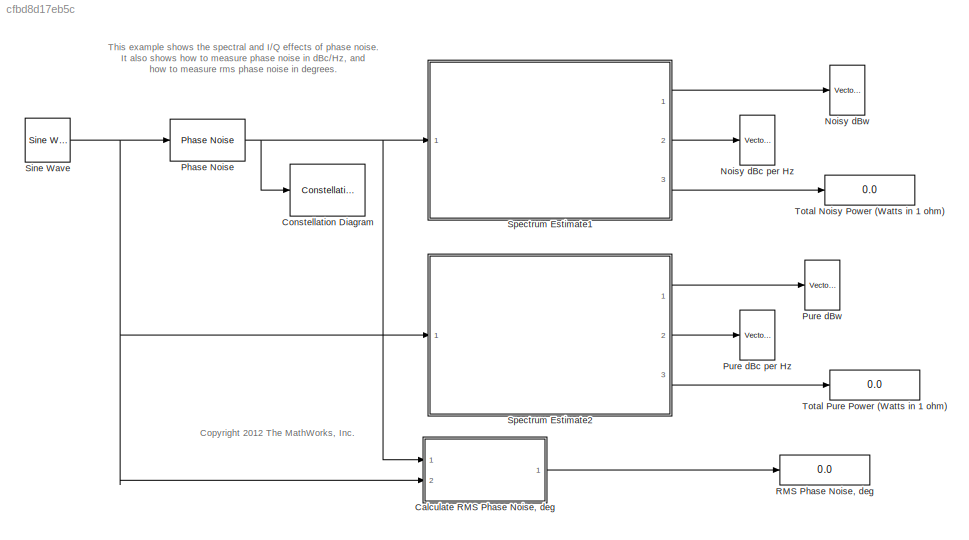
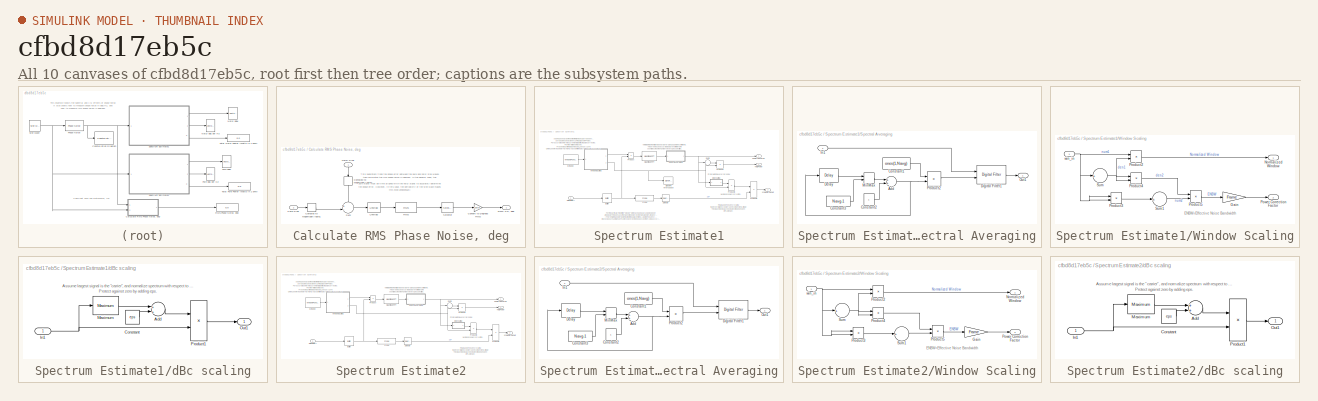
[diagram: thumbnail index - all 10 canvases of the model, root first then tree order]
MODEL slx_cfbd8d17eb5c
KIND model
BLOCK [SubSystem] Calculate RMS Phase Noise, deg
  Ports = [2, 1]
  RequestExecContextInheritance = off
BLOCK [ComplexToMagnitudeAngle] Calculate RMS Phase Noise, deg/Complex to Magnitude-Angle1
  Output = Angle
  Ports = [1, 1]
BLOCK [ComplexToMagnitudeAngle] Calculate RMS Phase Noise, deg/Complex to Magnitude-Angle2
  Output = Angle
  Ports = [1, 1]
BLOCK [Gain] Calculate RMS Phase Noise, deg/Convert to Degrees RMS
  Gain = 180/pi
  OutDataTypeStr = Inherit: Inherit via internal rule
  ParamDataTypeStr = Inherit: Inherit via internal rule
  SaturateOnIntegerOverflow = off
BLOCK [Inport] Calculate RMS Phase Noise, deg/Noisy Sine
  IconDisplay = Port number
BLOCK [Inport] Calculate RMS Phase Noise, deg/Pure Sine
  IconDisplay = Port number
  Port = 2
BLOCK [Reference] Calculate RMS Phase Noise, deg/RMS  REF=dspstat3/RMS
  InputProcessing = Columns as channels (frame based)
  Ports = [1, 1]
  SourceBlock = dspstat3/RMS
  SourceType = RMS
  UserDataPersistent = on
  dimension = 1
  directionMode = Each column
  reset_popup = None
  run = on
  treatSBRowAsCol = on
BLOCK [Outport] Calculate RMS Phase Noise, deg/RMS PN, deg
  IconDisplay = Port number
BLOCK [Selector] Calculate RMS Phase Noise, deg/Selector
  IndexOptions = Index vector (dialog),Index vector (dialog)
  Indices = 1024,1
  InputPortWidth = 3
  NumberOfDimensions = 2
  OutputSizes = 1,1
  Ports = [1, 1]
BLOCK [Sum] Calculate RMS Phase Noise, deg/Sum
  IconShape = round
  InputSameDT = off
  Inputs = +-|
  OutDataTypeStr = Inherit: Inherit via internal rule
  Ports = [2, 1]
  SaturateOnIntegerOverflow = off
BLOCK [Reference] Calculate RMS Phase Noise, deg/Unwrap  REF=dspsigops/Unwrap
  InputProcessing = Columns as channels (frame based)
  Ports = [1, 1]
  SourceBlock = dspsigops/Unwrap
  SourceType = Unwrap
  UserDataPersistent = on
  running = off
  tol = pi
BLOCK [ConstellationDiagram] Constellation Diagram
  Ports = [1]
  Tag = ScatterPlot
BLOCK [Reference] Noisy dBc per Hz  REF=dspsnks4/Vector
Scope
  AxisGrid = on
  AxisLegend = off
  AxisProperties = off
  AxisZoom = off
  DisplayProperties = off
  Domain = Frequency
  FigPos = [422 54 363 235]
  FrameNumber = on
  HorizSpan = 1
  InheritXIncr = on
  LineProperties = off
  Memory = off
  OpenScopeAtSimStart = on
  OpenScopeImmediately = off
  Ports = [1]
  ScopeProperties = on
  ShowPortLabels = off
  SourceBlock = dspsnks4/Vector\nScope
  SourceType = Vector Scope
  XAxisParamsVer = 6.9
  XIncr = 1/8192
  XLabel = Time
  XLimit = Auto
  XMax = 512
  XMin = -512
  XRange = [-Fs/2...Fs/2]
  XStart = 0
  XUnits = Hertz
  YLabel = dBc/Hz
  YMax = 10
  YMin = -150
  YUnits = dB
BLOCK [Reference] Noisy dBw  REF=dspsnks4/Vector
Scope
  AxisGrid = on
  AxisLegend = off
  AxisProperties = off
  AxisZoom = off
  DisplayProperties = off
  Domain = Frequency
  FigPos = [17 53 386 235]
  FrameNumber = on
  HorizSpan = 1
  InheritXIncr = on
  LineProperties = off
  Memory = off
  OpenScopeAtSimStart = on
  OpenScopeImmediately = off
  Ports = [1]
  ScopeProperties = on
  ShowPortLabels = off
  SourceBlock = dspsnks4/Vector\nScope
  SourceType = Vector Scope
  XAxisParamsVer = 6.9
  XIncr = 1
  XLabel = Time
  XLimit = Auto
  XMax = 512
  XMin = -512
  XRange = [-Fs/2...Fs/2]
  XStart = 0
  XUnits = Hertz
  YLabel = dBw
  YMax = 10
  YMin = -100
  YUnits = dB
BLOCK [Reference] Phase Noise  REF=commrflib2/Phase
Noise
  AttributesFormatString = \n
  Fo = [20 200]
  Fs = 8192
  PhNs = [-60 -80]
  Ports = [1, 1]
  SourceBlock = commrflib2/Phase\nNoise
  SourceType = Phase Noise
  seed = 2137
BLOCK [Reference] Pure dBc per Hz  REF=dspsnks4/Vector
Scope
  AxisGrid = on
  AxisLegend = off
  AxisProperties = off
  AxisZoom = off
  DisplayProperties = off
  Domain = Frequency
  FigPos = [418 437 367 238]
  FrameNumber = on
  HorizSpan = 1
  InheritXIncr = on
  LineProperties = off
  Memory = off
  OpenScopeAtSimStart = on
  OpenScopeImmediately = off
  Ports = [1]
  ScopeProperties = on
  ShowPortLabels = off
  SourceBlock = dspsnks4/Vector\nScope
  SourceType = Vector Scope
  XAxisParamsVer = 6.9
  XIncr = 1
  XLabel = Time
  XLimit = Auto
  XMax = 512
  XMin = -512
  XRange = [-Fs/2...Fs/2]
  XStart = 0
  XUnits = Hertz
  YLabel = dBc/Hz
  YMax = 8.0015
  YMin = -402.0216
  YUnits = dB
BLOCK [Reference] Pure dBw  REF=dspsnks4/Vector
Scope
  AxisGrid = on
  AxisLegend = off
  AxisProperties = off
  AxisZoom = off
  DisplayProperties = off
  Domain = Frequency
  FigPos = [14 435 385 241]
  FrameNumber = on
  HorizSpan = 1
  InheritXIncr = on
  LineProperties = off
  Memory = off
  OpenScopeAtSimStart = on
  OpenScopeImmediately = off
  Ports = [1]
  ScopeProperties = on
  ShowPortLabels = off
  SourceBlock = dspsnks4/Vector\nScope
  SourceType = Vector Scope
  XAxisParamsVer = 6.9
  XIncr = 1
  XLabel = Time
  XLimit = Auto
  XMax = 512
  XMin = -512
  XRange = [-Fs/2...Fs/2]
  XStart = 0
  XUnits = Hertz
  YLabel = dBw
  YMax = 9.7625
  YMin = -400.2607
  YUnits = dB
BLOCK [Display] RMS Phase Noise, deg
  Ports = [1]
BLOCK [Reference] Sine Wave  REF=dspsrcs4/Sine Wave
  Amplitude = 1
  CompMethod = Trigonometric fcn
  Frequency = 128
  LastOutDataTypeStr = double
  OutComplex = Complex
  OutDataTypeStr = double
  Phase = pi/8
  Ports = [0, 1]
  ResetState = Restart at time zero
  SampleMode = Discrete
  SampleTime = 1/8192
  SamplesPerFrame = 1024
  SourceBlock = dspsrcs4/Sine Wave
  SourceType = Sine Wave
  TableSize = Speed
  additionalParams = off
  allowOverrides = on
  dataType = double
  fracBitsMode = Best precision
  numFracBits = 15
  udDataType = sfix(16)
  wordLen = 16
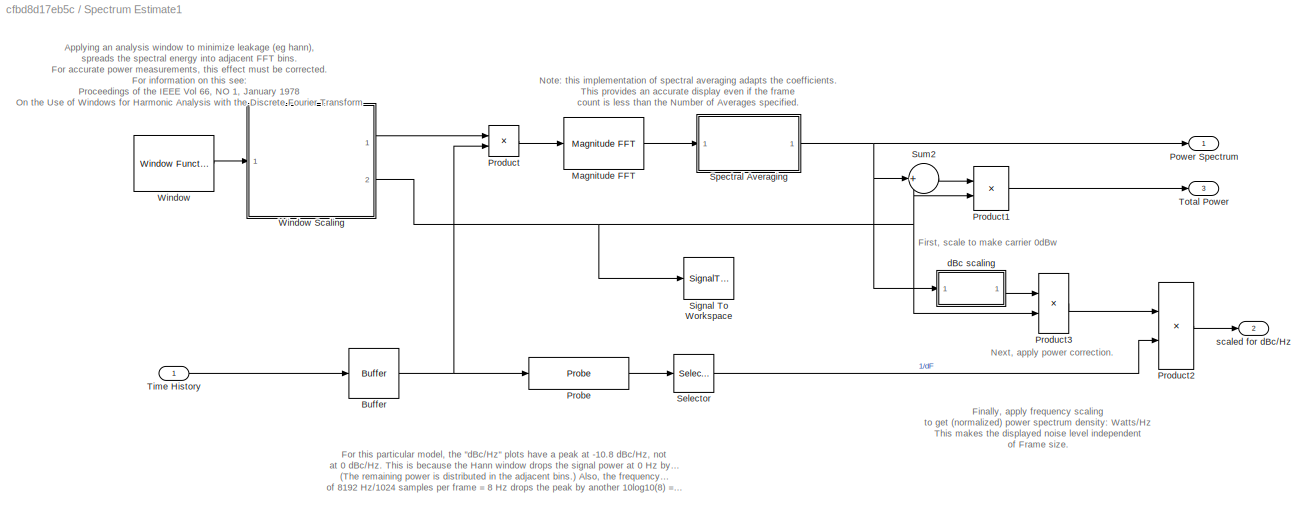
BLOCK [SubSystem] Spectrum Estimate1
  Ports = [1, 3]
  RequestExecContextInheritance = off
BLOCK [Buffer] Spectrum Estimate1/Buffer
  N = Frame
  TreatMby1Signals = One channel
BLOCK [Reference] Spectrum Estimate1/Magnitude FFT  REF=dspspect3/Magnitude
FFT
  FFTImplementation = Auto
  Ports = [1, 1]
  SourceBlock = dspspect3/Magnitude\nFFT
  SourceType = Magnitude FFT
  WrapInput = on
  fftLenInherit = on
  fftsize = fftsize
  mag_or_magsq = Magnitude squared
BLOCK [Outport] Spectrum Estimate1/Power Spectrum
  IconDisplay = Port number
BLOCK [Probe] Spectrum Estimate1/Probe
  Ports = [1, 1]
  ProbeComplexSignal = off
  ProbeSampleTimeDataType = single
  ProbeWidth = off
  ProbeWidthDataType = single
BLOCK [Product] Spectrum Estimate1/Product
  InputSameDT = off
  OutDataTypeStr = Inherit: Inherit via internal rule
  Ports = [2, 1]
  SaturateOnIntegerOverflow = off
BLOCK [Product] Spectrum Estimate1/Product1
  InputSameDT = off
  Inputs = */
  OutDataTypeStr = Inherit: Inherit via internal rule
  Ports = [2, 1]
  SaturateOnIntegerOverflow = off
BLOCK [Product] Spectrum Estimate1/Product2
  InputSameDT = off
  Inputs = **
  OutDataTypeStr = Inherit: Inherit via internal rule
  Ports = [2, 1]
  SaturateOnIntegerOverflow = off
BLOCK [Product] Spectrum Estimate1/Product3
  InputSameDT = off
  Inputs = */
  OutDataTypeStr = Inherit: Inherit via internal rule
  Ports = [2, 1]
  SaturateOnIntegerOverflow = off
BLOCK [Selector] Spectrum Estimate1/Selector
  Indices = [1]
  InputPortWidth = 2
  Ports = [1, 1]
BLOCK [SignalToWorkspace] Spectrum Estimate1/Signal To Workspace
  CopyFcn = dspblkcopystw(gcbh);
  MaxDataPoints = inf
  Ports = [1]
  VariableName = pwr_corr
BLOCK [SubSystem] Spectrum Estimate1/Spectral Averaging
  Ports = [1, 1]
  RequestExecContextInheritance = off
BLOCK [Sum] Spectrum Estimate1/Spectral Averaging/Add
  InputSameDT = off
  OutDataTypeStr = Inherit: Inherit via internal rule
  Ports = [2, 1]
  SaturateOnIntegerOverflow = off
BLOCK [Constant] Spectrum Estimate1/Spectral Averaging/Constant1
  OutDataTypeStr = double
  Value = ones(1,Navg)
BLOCK [Constant] Spectrum Estimate1/Spectral Averaging/Constant2
  OutDataTypeStr = double
BLOCK [Constant] Spectrum Estimate1/Spectral Averaging/Constant3
  OutDataTypeStr = double
  Value = Navg-1
BLOCK [Reference] Spectrum Estimate1/Spectral Averaging/Delay  REF=dspsigops/Delay
  InputProcessing = Inherited (this choice will be removed - see release notes)
  Ports = [1, 1]
  SourceBlock = dspsigops/Delay
  SourceType = Delay
  UserDataPersistent = on
  delay = 1
  dif_ic_for_ch = off
  dif_ic_for_dly = off
  dly_unit = Samples
  ic = 0
  ic_detail = off
  reset_popup = None
BLOCK [Reference] Spectrum Estimate1/Spectral Averaging/Digital Filter1  REF=dsparch4/Digital Filter
  AllPoleFiltStruct = Direct form
  BiQuadCoeffs = [1 0.3 0.4 1 0.1 0.2]
  CoeffSource = Input port(s)
  DenCoeffs = [1 0.1]
  FIRFiltStruct = Direct form
  FiltPerSampPopup = One filter per frame
  FilterSource = Input port(s)
  IC = 0
  ICden = 0
  ICnum = 0
  IIRFiltStruct = Direct form II transposed
  InputProcessing = Elements as channels (sample based)
  LatticeCoeffs = [0.2 0.4]
  LockScale = off
  NumCoeffs = [1 2]
  Ports = [2, 1]
  ScaleValues = 1
  SourceBlock = dsparch4/Digital Filter
  SourceType = Digital Filter
  TypePopup = FIR (all zeros)
  UserDataPersistent = on
  accumFracLength = 30
  accumMode = Same as product output
  accumWordLength = 32
  additionalParams = off
  allowOverrides = on
  denIgnore = on
  dfiltObjectName = dfilt.dffir([1 2 1])
  firstCoeffFracLength = 15
  firstCoeffMode = Same word length as input
  firstCoeffWordLength = 16
  memoryFracLength = 15
  memoryMode = Same as accumulator
  memoryWordLength = 16
  multiplicandFracLength = 30
  multiplicandMode = Same as output
  multiplicandWordLength = 32
  outputFracLength = 15
  outputMode = Same as accumulator
  outputWordLength = 16
  overflowMode = off
  prodOutputFracLength = 30
  prodOutputMode = Same as input
  prodOutputWordLength = 32
  roundingMode = Floor
  scaleValueFracLength = 14
  secondCoeffFracLength = 15
  secondCoeffMode = Same as numerator
  secondCoeffWordLength = 16
  showAcc = off
  showCoeff = off
  showMem = off
  showMpy = off
  showOut = off
  stageIOMode = Same as input
  stageIOWordLength = 16
  stageInFracLength = 15
  stageOutFracLength = 15
  tapSumFracLength = 30
  tapSumMode = Same as input
  tapSumWordLength = 32
  thirdCoeffFracLength = 15
  thirdCoeffMode = Same as input
  thirdCoeffWordLength = 16
BLOCK [Inport] Spectrum Estimate1/Spectral Averaging/In1
  IconDisplay = Port number
BLOCK [MinMax] Spectrum Estimate1/Spectral Averaging/MinMax
  InputSameDT = off
  Inputs = 2
  Ports = [2, 1]
  SaturateOnIntegerOverflow = off
BLOCK [Outport] Spectrum Estimate1/Spectral Averaging/Out1
  IconDisplay = Port number
BLOCK [Product] Spectrum Estimate1/Spectral Averaging/Product2
  InputSameDT = off
  Inputs = */
  OutDataTypeStr = Inherit: Inherit via internal rule
  Ports = [2, 1]
  SaturateOnIntegerOverflow = off
BLOCK [Sum] Spectrum Estimate1/Sum2
  IconShape = round
  InputSameDT = off
  Inputs = +
  OutDataTypeStr = Inherit: Inherit via internal rule
  Ports = [1, 1]
  SaturateOnIntegerOverflow = off
BLOCK [Inport] Spectrum Estimate1/Time History
  IconDisplay = Port number
BLOCK [Outport] Spectrum Estimate1/Total Power
  IconDisplay = Port number
  Port = 3
BLOCK [Reference] Spectrum Estimate1/Window  REF=dspsigops/Window
Function
  LockScale = off
  N = Frame
  OptParams = off
  Ports = [0, 1]
  RowConvenienceOn = on
  Rs = 60
  SourceBlock = dspsigops/Window\nFunction
  SourceType = Window Function
  UserParams = {1.0}
  UserWindow = hamming
  additionalParams = on
  allowOverrides = on
  beta = 1
  dataType = double
  firstCoeffFracLength = 15
  firstCoeffMode = Same word length as input
  firstCoeffWordLength = 16
  fracBitsMode = Best precision
  isSigned = on
  numFracBits = 15
  numSidelobes = 4
  outputFracLength = 15
  outputMode = Same as input
  outputWordLength = 16
  overflowMode = off
  prodOutputFracLength = 15
  prodOutputMode = Same as input
  prodOutputWordLength = 16
  roundingMode = Floor
  sampmode = Discrete
  samptime = inf
  sidelobeLevel = -30
  udDataType = sfix(16)
  winmode = Generate window
  winsamp = Periodic
  wintype = Hann
  wordLen = 16
BLOCK [SubSystem] Spectrum Estimate1/Window Scaling
  Ports = [1, 2]
  RequestExecContextInheritance = off
BLOCK [Gain] Spectrum Estimate1/Window Scaling/Gain
  Gain = Frame
  OutDataTypeStr = Inherit: Inherit via internal rule
  ParamDataTypeStr = Inherit: Inherit via internal rule
  SaturateOnIntegerOverflow = off
BLOCK [Outport] Spectrum Estimate1/Window Scaling/Normalized Window
  IconDisplay = Port number
BLOCK [Outport] Spectrum Estimate1/Window Scaling/Power Correction Factor
  IconDisplay = Port number
  Port = 2
BLOCK [Product] Spectrum Estimate1/Window Scaling/Product2
  InputSameDT = off
  Inputs = */
  OutDataTypeStr = Inherit: Inherit via internal rule
  Ports = [2, 1]
  SaturateOnIntegerOverflow = off
BLOCK [Product] Spectrum Estimate1/Window Scaling/Product3
  InputSameDT = off
  OutDataTypeStr = Inherit: Inherit via internal rule
  Ports = [2, 1]
  SaturateOnIntegerOverflow = off
BLOCK [Product] Spectrum Estimate1/Window Scaling/Product4
  InputSameDT = off
  OutDataTypeStr = Inherit: Inherit via internal rule
  Ports = [2, 1]
  SaturateOnIntegerOverflow = off
BLOCK [Product] Spectrum Estimate1/Window Scaling/Product5
  InputSameDT = off
  Inputs = /*
  OutDataTypeStr = Inherit: Inherit via internal rule
  Ports = [2, 1]
  SaturateOnIntegerOverflow = off
BLOCK [Sum] Spectrum Estimate1/Window Scaling/Sum
  IconShape = round
  InputSameDT = off
  Inputs = +
  OutDataTypeStr = Inherit: Inherit via internal rule
  Ports = [1, 1]
  SaturateOnIntegerOverflow = off
BLOCK [Sum] Spectrum Estimate1/Window Scaling/Sum1
  IconShape = round
  InputSameDT = off
  Inputs = +
  OutDataTypeStr = Inherit: Inherit via internal rule
  Ports = [1, 1]
  SaturateOnIntegerOverflow = off
BLOCK [Inport] Spectrum Estimate1/Window Scaling/win_in
  IconDisplay = Port number
BLOCK [SubSystem] Spectrum Estimate1/dBc scaling
  Ports = [1, 1]
  RequestExecContextInheritance = off
BLOCK [Sum] Spectrum Estimate1/dBc scaling/Add
  InputSameDT = off
  OutDataTypeStr = Inherit: Inherit via internal rule
  Ports = [2, 1]
  SaturateOnIntegerOverflow = off
BLOCK [Constant] Spectrum Estimate1/dBc scaling/Constant
  Value = eps
BLOCK [Inport] Spectrum Estimate1/dBc scaling/In1
  IconDisplay = Port number
BLOCK [Reference] Spectrum Estimate1/dBc scaling/Maximum  REF=dspstat3/Maximum
  Dimension = 1
  InputProcessing = Columns as channels (frame based)
  LockScale = off
  Ports = [1, 1]
  SourceBlock = dspstat3/Maximum
  SourceType = Maximum
  UserDataPersistent = on
  accumDataTypeStr = Inherit: Same as product output
  accumFracLength = 30
  accumLastDataTypeStr = Inherit: Same as product output
  accumMode = Same as product output
  accumWordLength = 32
  additionalParams = off
  allowOverrides = on
  colComp = off
  fcn = Value
  indexBase = One
  operateOver = Each column
  operation = maximum
  overflowMode = off
  prodOutputDataTypeStr = Inherit: Same as input
  prodOutputFracLength = 30
  prodOutputLastDataTypeStr = Inherit: Same as input
  prodOutputMode = Same as input
  prodOutputWordLength = 32
  reset = None
  roiEnable = off
  roiFlag = off
  roiOutput = Individual statistics for each ROI
  roiPortion = Entire ROI
  roiType = Rectangles
  roundingMode = Floor
BLOCK [Outport] Spectrum Estimate1/dBc scaling/Out1
  IconDisplay = Port number
BLOCK [Product] Spectrum Estimate1/dBc scaling/Product1
  InputSameDT = off
  Inputs = /*
  OutDataTypeStr = Inherit: Inherit via internal rule
  Ports = [2, 1]
  SaturateOnIntegerOverflow = off
BLOCK [Outport] Spectrum Estimate1/scaled for dBc//Hz
  IconDisplay = Port number
  Port = 2
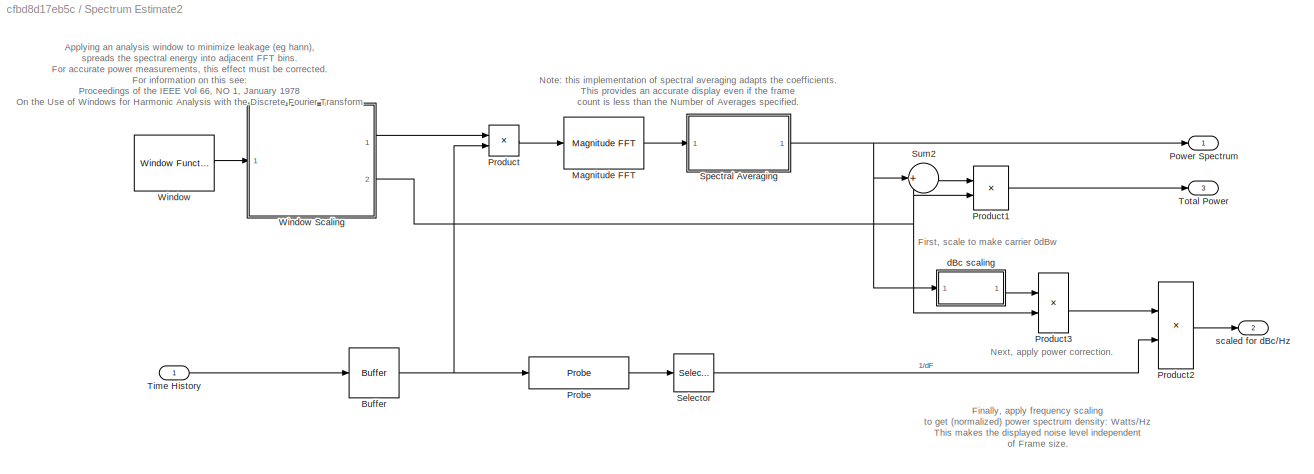
BLOCK [SubSystem] Spectrum Estimate2
  Ports = [1, 3]
  RequestExecContextInheritance = off
BLOCK [Buffer] Spectrum Estimate2/Buffer
  N = Frame
  TreatMby1Signals = One channel
BLOCK [Reference] Spectrum Estimate2/Magnitude FFT  REF=dspspect3/Magnitude
FFT
  FFTImplementation = Auto
  Ports = [1, 1]
  SourceBlock = dspspect3/Magnitude\nFFT
  SourceType = Magnitude FFT
  WrapInput = on
  fftLenInherit = on
  fftsize = fftsize
  mag_or_magsq = Magnitude squared
BLOCK [Outport] Spectrum Estimate2/Power Spectrum
  IconDisplay = Port number
BLOCK [Probe] Spectrum Estimate2/Probe
  Ports = [1, 1]
  ProbeComplexSignal = off
  ProbeSampleTimeDataType = single
  ProbeWidth = off
  ProbeWidthDataType = single
BLOCK [Product] Spectrum Estimate2/Product
  InputSameDT = off
  OutDataTypeStr = Inherit: Inherit via internal rule
  Ports = [2, 1]
  SaturateOnIntegerOverflow = off
BLOCK [Product] Spectrum Estimate2/Product1
  InputSameDT = off
  Inputs = */
  OutDataTypeStr = Inherit: Inherit via internal rule
  Ports = [2, 1]
  SaturateOnIntegerOverflow = off
BLOCK [Product] Spectrum Estimate2/Product2
  InputSameDT = off
  Inputs = **
  OutDataTypeStr = Inherit: Inherit via internal rule
  Ports = [2, 1]
  SaturateOnIntegerOverflow = off
BLOCK [Product] Spectrum Estimate2/Product3
  InputSameDT = off
  Inputs = */
  OutDataTypeStr = Inherit: Inherit via internal rule
  Ports = [2, 1]
  SaturateOnIntegerOverflow = off
BLOCK [Selector] Spectrum Estimate2/Selector
  Indices = [1]
  InputPortWidth = 2
  Ports = [1, 1]
BLOCK [SubSystem] Spectrum Estimate2/Spectral Averaging
  Ports = [1, 1]
  RequestExecContextInheritance = off
BLOCK [Sum] Spectrum Estimate2/Spectral Averaging/Add
  InputSameDT = off
  OutDataTypeStr = Inherit: Inherit via internal rule
  Ports = [2, 1]
  SaturateOnIntegerOverflow = off
BLOCK [Constant] Spectrum Estimate2/Spectral Averaging/Constant1
  OutDataTypeStr = double
  Value = ones(1,Navg)
BLOCK [Constant] Spectrum Estimate2/Spectral Averaging/Constant2
  OutDataTypeStr = double
BLOCK [Constant] Spectrum Estimate2/Spectral Averaging/Constant3
  OutDataTypeStr = double
  Value = Navg-1
BLOCK [Reference] Spectrum Estimate2/Spectral Averaging/Delay  REF=dspsigops/Delay
  InputProcessing = Inherited (this choice will be removed - see release notes)
  Ports = [1, 1]
  SourceBlock = dspsigops/Delay
  SourceType = Delay
  UserDataPersistent = on
  delay = 1
  dif_ic_for_ch = off
  dif_ic_for_dly = off
  dly_unit = Samples
  ic = 0
  ic_detail = off
  reset_popup = None
BLOCK [Reference] Spectrum Estimate2/Spectral Averaging/Digital Filter1  REF=dsparch4/Digital Filter
  AllPoleFiltStruct = Direct form
  BiQuadCoeffs = [1 0.3 0.4 1 0.1 0.2]
  CoeffSource = Input port(s)
  DenCoeffs = [1 0.1]
  FIRFiltStruct = Direct form
  FiltPerSampPopup = One filter per frame
  FilterSource = Input port(s)
  IC = 0
  ICden = 0
  ICnum = 0
  IIRFiltStruct = Direct form II transposed
  InputProcessing = Elements as channels (sample based)
  LatticeCoeffs = [0.2 0.4]
  LockScale = off
  NumCoeffs = [1 2]
  Ports = [2, 1]
  ScaleValues = 1
  SourceBlock = dsparch4/Digital Filter
  SourceType = Digital Filter
  TypePopup = FIR (all zeros)
  UserDataPersistent = on
  accumFracLength = 30
  accumMode = Same as product output
  accumWordLength = 32
  additionalParams = off
  allowOverrides = on
  denIgnore = on
  dfiltObjectName = dfilt.dffir([1 2 1])
  firstCoeffFracLength = 15
  firstCoeffMode = Same word length as input
  firstCoeffWordLength = 16
  memoryFracLength = 15
  memoryMode = Same as accumulator
  memoryWordLength = 16
  multiplicandFracLength = 30
  multiplicandMode = Same as output
  multiplicandWordLength = 32
  outputFracLength = 15
  outputMode = Same as accumulator
  outputWordLength = 16
  overflowMode = off
  prodOutputFracLength = 30
  prodOutputMode = Same as input
  prodOutputWordLength = 32
  roundingMode = Floor
  scaleValueFracLength = 14
  secondCoeffFracLength = 15
  secondCoeffMode = Same as numerator
  secondCoeffWordLength = 16
  showAcc = off
  showCoeff = off
  showMem = off
  showMpy = off
  showOut = off
  stageIOMode = Same as input
  stageIOWordLength = 16
  stageInFracLength = 15
  stageOutFracLength = 15
  tapSumFracLength = 30
  tapSumMode = Same as input
  tapSumWordLength = 32
  thirdCoeffFracLength = 15
  thirdCoeffMode = Same as input
  thirdCoeffWordLength = 16
BLOCK [Inport] Spectrum Estimate2/Spectral Averaging/In1
  IconDisplay = Port number
BLOCK [MinMax] Spectrum Estimate2/Spectral Averaging/MinMax
  InputSameDT = off
  Inputs = 2
  Ports = [2, 1]
  SaturateOnIntegerOverflow = off
BLOCK [Outport] Spectrum Estimate2/Spectral Averaging/Out1
  IconDisplay = Port number
BLOCK [Product] Spectrum Estimate2/Spectral Averaging/Product2
  InputSameDT = off
  Inputs = */
  OutDataTypeStr = Inherit: Inherit via internal rule
  Ports = [2, 1]
  SaturateOnIntegerOverflow = off
BLOCK [Sum] Spectrum Estimate2/Sum2
  IconShape = round
  InputSameDT = off
  Inputs = +
  OutDataTypeStr = Inherit: Inherit via internal rule
  Ports = [1, 1]
  SaturateOnIntegerOverflow = off
BLOCK [Inport] Spectrum Estimate2/Time History
  IconDisplay = Port number
BLOCK [Outport] Spectrum Estimate2/Total Power
  IconDisplay = Port number
  Port = 3
BLOCK [Reference] Spectrum Estimate2/Window  REF=dspsigops/Window
Function
  LockScale = off
  N = Frame
  OptParams = off
  Ports = [0, 1]
  RowConvenienceOn = on
  Rs = 60
  SourceBlock = dspsigops/Window\nFunction
  SourceType = Window Function
  UserParams = {1.0}
  UserWindow = hamming
  additionalParams = on
  allowOverrides = on
  beta = 1
  dataType = double
  firstCoeffFracLength = 15
  firstCoeffMode = Same word length as input
  firstCoeffWordLength = 16
  fracBitsMode = Best precision
  isSigned = on
  numFracBits = 15
  numSidelobes = 4
  outputFracLength = 15
  outputMode = Same as input
  outputWordLength = 16
  overflowMode = off
  prodOutputFracLength = 15
  prodOutputMode = Same as input
  prodOutputWordLength = 16
  roundingMode = Floor
  sampmode = Discrete
  samptime = inf
  sidelobeLevel = -30
  udDataType = sfix(16)
  winmode = Generate window
  winsamp = Periodic
  wintype = Hann
  wordLen = 16
BLOCK [SubSystem] Spectrum Estimate2/Window Scaling
  Ports = [1, 2]
  RequestExecContextInheritance = off
BLOCK [Gain] Spectrum Estimate2/Window Scaling/Gain
  Gain = Frame
  OutDataTypeStr = Inherit: Inherit via internal rule
  ParamDataTypeStr = Inherit: Inherit via internal rule
  SaturateOnIntegerOverflow = off
BLOCK [Outport] Spectrum Estimate2/Window Scaling/Normalized Window
  IconDisplay = Port number
BLOCK [Outport] Spectrum Estimate2/Window Scaling/Power Correction Factor
  IconDisplay = Port number
  Port = 2
BLOCK [Product] Spectrum Estimate2/Window Scaling/Product2
  InputSameDT = off
  Inputs = */
  OutDataTypeStr = Inherit: Inherit via internal rule
  Ports = [2, 1]
  SaturateOnIntegerOverflow = off
BLOCK [Product] Spectrum Estimate2/Window Scaling/Product3
  InputSameDT = off
  OutDataTypeStr = Inherit: Inherit via internal rule
  Ports = [2, 1]
  SaturateOnIntegerOverflow = off
BLOCK [Product] Spectrum Estimate2/Window Scaling/Product4
  InputSameDT = off
  OutDataTypeStr = Inherit: Inherit via internal rule
  Ports = [2, 1]
  SaturateOnIntegerOverflow = off
BLOCK [Product] Spectrum Estimate2/Window Scaling/Product5
  InputSameDT = off
  Inputs = /*
  OutDataTypeStr = Inherit: Inherit via internal rule
  Ports = [2, 1]
  SaturateOnIntegerOverflow = off
BLOCK [Sum] Spectrum Estimate2/Window Scaling/Sum
  IconShape = round
  InputSameDT = off
  Inputs = +
  OutDataTypeStr = Inherit: Inherit via internal rule
  Ports = [1, 1]
  SaturateOnIntegerOverflow = off
BLOCK [Sum] Spectrum Estimate2/Window Scaling/Sum1
  IconShape = round
  InputSameDT = off
  Inputs = +
  OutDataTypeStr = Inherit: Inherit via internal rule
  Ports = [1, 1]
  SaturateOnIntegerOverflow = off
BLOCK [Inport] Spectrum Estimate2/Window Scaling/win_in
  IconDisplay = Port number
BLOCK [SubSystem] Spectrum Estimate2/dBc scaling
  Ports = [1, 1]
  RequestExecContextInheritance = off
BLOCK [Sum] Spectrum Estimate2/dBc scaling/Add
  InputSameDT = off
  OutDataTypeStr = Inherit: Inherit via internal rule
  Ports = [2, 1]
  SaturateOnIntegerOverflow = off
BLOCK [Constant] Spectrum Estimate2/dBc scaling/Constant
  Value = eps
BLOCK [Inport] Spectrum Estimate2/dBc scaling/In1
  IconDisplay = Port number
BLOCK [Reference] Spectrum Estimate2/dBc scaling/Maximum  REF=dspstat3/Maximum
  Dimension = 1
  InputProcessing = Columns as channels (frame based)
  LockScale = off
  Ports = [1, 1]
  SourceBlock = dspstat3/Maximum
  SourceType = Maximum
  UserDataPersistent = on
  accumDataTypeStr = Inherit: Same as product output
  accumFracLength = 30
  accumLastDataTypeStr = Inherit: Same as product output
  accumMode = Same as product output
  accumWordLength = 32
  additionalParams = off
  allowOverrides = on
  colComp = off
  fcn = Value
  indexBase = One
  operateOver = Each column
  operation = maximum
  overflowMode = off
  prodOutputDataTypeStr = Inherit: Same as input
  prodOutputFracLength = 30
  prodOutputLastDataTypeStr = Inherit: Same as input
  prodOutputMode = Same as input
  prodOutputWordLength = 32
  reset = None
  roiEnable = off
  roiFlag = off
  roiOutput = Individual statistics for each ROI
  roiPortion = Entire ROI
  roiType = Rectangles
  roundingMode = Floor
BLOCK [Outport] Spectrum Estimate2/dBc scaling/Out1
  IconDisplay = Port number
BLOCK [Product] Spectrum Estimate2/dBc scaling/Product1
  InputSameDT = off
  Inputs = /*
  OutDataTypeStr = Inherit: Inherit via internal rule
  Ports = [2, 1]
  SaturateOnIntegerOverflow = off
BLOCK [Outport] Spectrum Estimate2/scaled for dBc//Hz
  IconDisplay = Port number
  Port = 2
BLOCK [Display] Total Noisy Power (Watts in 1 ohm)
  Ports = [1]
BLOCK [Display] Total Pure Power (Watts in 1 ohm)
  Ports = [1]
ANNOTATION (root): <copyright redacted>
ANNOTATION (root): This example shows the spectral and I/Q effects of phase noise. It also shows how to measure phase noise in dBc/Hz, and how to measure rms phase noise in degrees.
ANNOTATION Calculate RMS Phase Noise, deg: This subsystem finds the phase error between the pure and noisy sine waves, then calculates the rms phase noise in degrees. In the general case, the pure signal must be time aligned with the noisy signal to accurately determine the phase error. However, in this case, the periodicity of the sine wave makes this step unnecessary.
ANNOTATION Spectrum Estimate1: Applying an analysis window to minimize leakage (eg hann), spreads the spectral energy into adjacent FFT bins. For accurate power measurements, this effect must be corrected. For information on this see: Proceedings of the IEEE Vol 66, NO 1, January 1978 On the Use of Windows for Harmonic Analysis with the Discrete Fourier Transform Fredric J. Harris
ANNOTATION Spectrum Estimate1: Finally, apply frequency scaling to get (normalized) power spectrum density: Watts/Hz This makes the displayed noise level independent of Frame size.
ANNOTATION Spectrum Estimate1: First, scale to make carrier 0dBw
ANNOTATION Spectrum Estimate1: For this particular model, the "dBc/Hz" plots have a peak at -10.8 dBc/Hz, not at 0 dBc/Hz. This is because the Hann window drops the signal power at 0 Hz by 1.8 dB. (The remaining power is distributed in the adjacent bins.) Also, the frequency resolution of 8192 Hz/1024 samples per frame = 8 Hz drops the peak by another 10log10(8) = 9 dB.
ANNOTATION Spectrum Estimate1: Next, apply power correction.
ANNOTATION Spectrum Estimate1: Note: this implementation of spectral averaging adapts the coefficients. This provides an accurate display even if the frame count is less than the Number of Averages specified.
ANNOTATION Spectrum Estimate1/Window Scaling: ENBW=Effective Noise Bandwidth
ANNOTATION Spectrum Estimate1/dBc scaling: Assume largest signal is the "carrier", and normalize spectrum with respect to this. Protect against zero by adding eps.
ANNOTATION Spectrum Estimate2: Applying an analysis window to minimize leakage (eg hann), spreads the spectral energy into adjacent FFT bins. For accurate power measurements, this effect must be corrected. For information on this see: Proceedings of the IEEE Vol 66, NO 1, January 1978 On the Use of Windows for Harmonic Analysis with the Discrete Fourier Transform Fredric J. Harris
ANNOTATION Spectrum Estimate2: Finally, apply frequency scaling to get (normalized) power spectrum density: Watts/Hz This makes the displayed noise level independent of Frame size.
ANNOTATION Spectrum Estimate2: First, scale to make carrier 0dBw
ANNOTATION Spectrum Estimate2: Next, apply power correction.
ANNOTATION Spectrum Estimate2: Note: this implementation of spectral averaging adapts the coefficients. This provides an accurate display even if the frame count is less than the Number of Averages specified.
ANNOTATION Spectrum Estimate2/Window Scaling: ENBW=Effective Noise Bandwidth
ANNOTATION Spectrum Estimate2/dBc scaling: Assume largest signal is the "carrier", and normalize spectrum with respect to this. Protect against zero by adding eps.
LINE Calculate RMS Phase Noise, deg/Complex to Magnitude-Angle1:1 -> Calculate RMS Phase Noise, deg/Sum:2
LINE Calculate RMS Phase Noise, deg/Complex to Magnitude-Angle2:1 -> Calculate RMS Phase Noise, deg/Sum:1
LINE Calculate RMS Phase Noise, deg/Convert to Degrees RMS:1 -> Calculate RMS Phase Noise, deg/RMS PN, deg:1
LINE Calculate RMS Phase Noise, deg/Noisy Sine:1 -> Calculate RMS Phase Noise, deg/Complex to Magnitude-Angle2:1
LINE Calculate RMS Phase Noise, deg/Pure Sine:1 -> Calculate RMS Phase Noise, deg/Complex to Magnitude-Angle1:1
LINE Calculate RMS Phase Noise, deg/RMS:1 -> Calculate RMS Phase Noise, deg/Selector:1
LINE Calculate RMS Phase Noise, deg/Selector:1 -> Calculate RMS Phase Noise, deg/Convert to Degrees RMS:1
LINE Calculate RMS Phase Noise, deg/Sum:1 -> Calculate RMS Phase Noise, deg/Unwrap:1
LINE Calculate RMS Phase Noise, deg/Unwrap:1 -> Calculate RMS Phase Noise, deg/RMS:1
LINE Calculate RMS Phase Noise, deg:1 -> RMS Phase Noise, deg:1
NET Phase Noise:1 -> Calculate RMS Phase Noise, deg:1, Constellation Diagram:1, Spectrum Estimate1:1
NET Sine Wave:1 -> Calculate RMS Phase Noise, deg:2, Phase Noise:1, Spectrum Estimate2:1
NET Spectrum Estimate1/Buffer:1 -> Spectrum Estimate1/Probe:1, Spectrum Estimate1/Product:2
LINE Spectrum Estimate1/Magnitude FFT:1 -> Spectrum Estimate1/Spectral Averaging:1
LINE Spectrum Estimate1/Probe:1 -> Spectrum Estimate1/Selector:1
LINE Spectrum Estimate1/Product1:1 -> Spectrum Estimate1/Total Power:1
LINE Spectrum Estimate1/Product2:1 -> Spectrum Estimate1/scaled for dBc//Hz:1
LINE Spectrum Estimate1/Product3:1 -> Spectrum Estimate1/Product2:1
LINE Spectrum Estimate1/Product:1 -> Spectrum Estimate1/Magnitude FFT:1
LINE Spectrum Estimate1/Selector:1 -> Spectrum Estimate1/Product2:2
NET Spectrum Estimate1/Spectral Averaging/Add:1 -> Spectrum Estimate1/Spectral Averaging/Delay:1, Spectrum Estimate1/Spectral Averaging/Product2:2
LINE Spectrum Estimate1/Spectral Averaging/Constant1:1 -> Spectrum Estimate1/Spectral Averaging/Product2:1
LINE Spectrum Estimate1/Spectral Averaging/Constant2:1 -> Spectrum Estimate1/Spectral Averaging/Add:2
LINE Spectrum Estimate1/Spectral Averaging/Constant3:1 -> Spectrum Estimate1/Spectral Averaging/MinMax:2
LINE Spectrum Estimate1/Spectral Averaging/Delay:1 -> Spectrum Estimate1/Spectral Averaging/MinMax:1
LINE Spectrum Estimate1/Spectral Averaging/Digital Filter1:1 -> Spectrum Estimate1/Spectral Averaging/Out1:1
LINE Spectrum Estimate1/Spectral Averaging/In1:1 -> Spectrum Estimate1/Spectral Averaging/Digital Filter1:1
LINE Spectrum Estimate1/Spectral Averaging/MinMax:1 -> Spectrum Estimate1/Spectral Averaging/Add:1
LINE Spectrum Estimate1/Spectral Averaging/Product2:1 -> Spectrum Estimate1/Spectral Averaging/Digital Filter1:2
NET Spectrum Estimate1/Spectral Averaging:1 -> Spectrum Estimate1/Power Spectrum:1, Spectrum Estimate1/Sum2:1, Spectrum Estimate1/dBc scaling:1
LINE Spectrum Estimate1/Sum2:1 -> Spectrum Estimate1/Product1:1
LINE Spectrum Estimate1/Time History:1 -> Spectrum Estimate1/Buffer:1
LINE Spectrum Estimate1/Window Scaling/Gain:1 -> Spectrum Estimate1/Window Scaling/Power Correction Factor:1
LINE Spectrum Estimate1/Window Scaling/Product2:1 -> Spectrum Estimate1/Window Scaling/Normalized Window:1
LINE Spectrum Estimate1/Window Scaling/Product3:1 -> Spectrum Estimate1/Window Scaling/Sum1:1
LINE Spectrum Estimate1/Window Scaling/Product4:1 -> Spectrum Estimate1/Window Scaling/Product5:1
LINE Spectrum Estimate1/Window Scaling/Product5:1 -> Spectrum Estimate1/Window Scaling/Gain:1
LINE Spectrum Estimate1/Window Scaling/Sum1:1 -> Spectrum Estimate1/Window Scaling/Product5:2
NET Spectrum Estimate1/Window Scaling/Sum:1 -> Spectrum Estimate1/Window Scaling/Product2:2, Spectrum Estimate1/Window Scaling/Product4:1, Spectrum Estimate1/Window Scaling/Product4:2
NET Spectrum Estimate1/Window Scaling/win_in:1 -> Spectrum Estimate1/Window Scaling/Product2:1, Spectrum Estimate1/Window Scaling/Product3:1, Spectrum Estimate1/Window Scaling/Product3:2, Spectrum Estimate1/Window Scaling/Sum:1
LINE Spectrum Estimate1/Window Scaling:1 -> Spectrum Estimate1/Product:1
NET Spectrum Estimate1/Window Scaling:2 -> Spectrum Estimate1/Product1:2, Spectrum Estimate1/Product3:2, Spectrum Estimate1/Signal To Workspace:1
LINE Spectrum Estimate1/Window:1 -> Spectrum Estimate1/Window Scaling:1
LINE Spectrum Estimate1/dBc scaling/Add:1 -> Spectrum Estimate1/dBc scaling/Product1:1
LINE Spectrum Estimate1/dBc scaling/Constant:1 -> Spectrum Estimate1/dBc scaling/Add:2
NET Spectrum Estimate1/dBc scaling/In1:1 -> Spectrum Estimate1/dBc scaling/Maximum:1, Spectrum Estimate1/dBc scaling/Product1:2
LINE Spectrum Estimate1/dBc scaling/Maximum:1 -> Spectrum Estimate1/dBc scaling/Add:1
LINE Spectrum Estimate1/dBc scaling/Product1:1 -> Spectrum Estimate1/dBc scaling/Out1:1
LINE Spectrum Estimate1/dBc scaling:1 -> Spectrum Estimate1/Product3:1
LINE Spectrum Estimate1:1 -> Noisy dBw:1
LINE Spectrum Estimate1:2 -> Noisy dBc per Hz:1
LINE Spectrum Estimate1:3 -> Total Noisy Power (Watts in 1 ohm):1
NET Spectrum Estimate2/Buffer:1 -> Spectrum Estimate2/Probe:1, Spectrum Estimate2/Product:2
LINE Spectrum Estimate2/Magnitude FFT:1 -> Spectrum Estimate2/Spectral Averaging:1
LINE Spectrum Estimate2/Probe:1 -> Spectrum Estimate2/Selector:1
LINE Spectrum Estimate2/Product1:1 -> Spectrum Estimate2/Total Power:1
LINE Spectrum Estimate2/Product2:1 -> Spectrum Estimate2/scaled for dBc//Hz:1
LINE Spectrum Estimate2/Product3:1 -> Spectrum Estimate2/Product2:1
LINE Spectrum Estimate2/Product:1 -> Spectrum Estimate2/Magnitude FFT:1
LINE Spectrum Estimate2/Selector:1 -> Spectrum Estimate2/Product2:2
NET Spectrum Estimate2/Spectral Averaging/Add:1 -> Spectrum Estimate2/Spectral Averaging/Delay:1, Spectrum Estimate2/Spectral Averaging/Product2:2
LINE Spectrum Estimate2/Spectral Averaging/Constant1:1 -> Spectrum Estimate2/Spectral Averaging/Product2:1
LINE Spectrum Estimate2/Spectral Averaging/Constant2:1 -> Spectrum Estimate2/Spectral Averaging/Add:2
LINE Spectrum Estimate2/Spectral Averaging/Constant3:1 -> Spectrum Estimate2/Spectral Averaging/MinMax:2
LINE Spectrum Estimate2/Spectral Averaging/Delay:1 -> Spectrum Estimate2/Spectral Averaging/MinMax:1
LINE Spectrum Estimate2/Spectral Averaging/Digital Filter1:1 -> Spectrum Estimate2/Spectral Averaging/Out1:1
LINE Spectrum Estimate2/Spectral Averaging/In1:1 -> Spectrum Estimate2/Spectral Averaging/Digital Filter1:1
LINE Spectrum Estimate2/Spectral Averaging/MinMax:1 -> Spectrum Estimate2/Spectral Averaging/Add:1
LINE Spectrum Estimate2/Spectral Averaging/Product2:1 -> Spectrum Estimate2/Spectral Averaging/Digital Filter1:2
NET Spectrum Estimate2/Spectral Averaging:1 -> Spectrum Estimate2/Power Spectrum:1, Spectrum Estimate2/Sum2:1, Spectrum Estimate2/dBc scaling:1
LINE Spectrum Estimate2/Sum2:1 -> Spectrum Estimate2/Product1:1
LINE Spectrum Estimate2/Time History:1 -> Spectrum Estimate2/Buffer:1
LINE Spectrum Estimate2/Window Scaling/Gain:1 -> Spectrum Estimate2/Window Scaling/Power Correction Factor:1
LINE Spectrum Estimate2/Window Scaling/Product2:1 -> Spectrum Estimate2/Window Scaling/Normalized Window:1
LINE Spectrum Estimate2/Window Scaling/Product3:1 -> Spectrum Estimate2/Window Scaling/Sum1:1
LINE Spectrum Estimate2/Window Scaling/Product4:1 -> Spectrum Estimate2/Window Scaling/Product5:1
LINE Spectrum Estimate2/Window Scaling/Product5:1 -> Spectrum Estimate2/Window Scaling/Gain:1
LINE Spectrum Estimate2/Window Scaling/Sum1:1 -> Spectrum Estimate2/Window Scaling/Product5:2
NET Spectrum Estimate2/Window Scaling/Sum:1 -> Spectrum Estimate2/Window Scaling/Product2:2, Spectrum Estimate2/Window Scaling/Product4:1, Spectrum Estimate2/Window Scaling/Product4:2
NET Spectrum Estimate2/Window Scaling/win_in:1 -> Spectrum Estimate2/Window Scaling/Product2:1, Spectrum Estimate2/Window Scaling/Product3:1, Spectrum Estimate2/Window Scaling/Product3:2, Spectrum Estimate2/Window Scaling/Sum:1
LINE Spectrum Estimate2/Window Scaling:1 -> Spectrum Estimate2/Product:1
NET Spectrum Estimate2/Window Scaling:2 -> Spectrum Estimate2/Product1:2, Spectrum Estimate2/Product3:2
LINE Spectrum Estimate2/Window:1 -> Spectrum Estimate2/Window Scaling:1
LINE Spectrum Estimate2/dBc scaling/Add:1 -> Spectrum Estimate2/dBc scaling/Product1:1
LINE Spectrum Estimate2/dBc scaling/Constant:1 -> Spectrum Estimate2/dBc scaling/Add:2
NET Spectrum Estimate2/dBc scaling/In1:1 -> Spectrum Estimate2/dBc scaling/Maximum:1, Spectrum Estimate2/dBc scaling/Product1:2
LINE Spectrum Estimate2/dBc scaling/Maximum:1 -> Spectrum Estimate2/dBc scaling/Add:1
LINE Spectrum Estimate2/dBc scaling/Product1:1 -> Spectrum Estimate2/dBc scaling/Out1:1
LINE Spectrum Estimate2/dBc scaling:1 -> Spectrum Estimate2/Product3:1
LINE Spectrum Estimate2:1 -> Pure dBw:1
LINE Spectrum Estimate2:2 -> Pure dBc per Hz:1
LINE Spectrum Estimate2:3 -> Total Pure Power (Watts in 1 ohm):1
note: NET lines group one-source signal fan-out (src -> all destinations, sorted); 1:1 wires keep LINE
